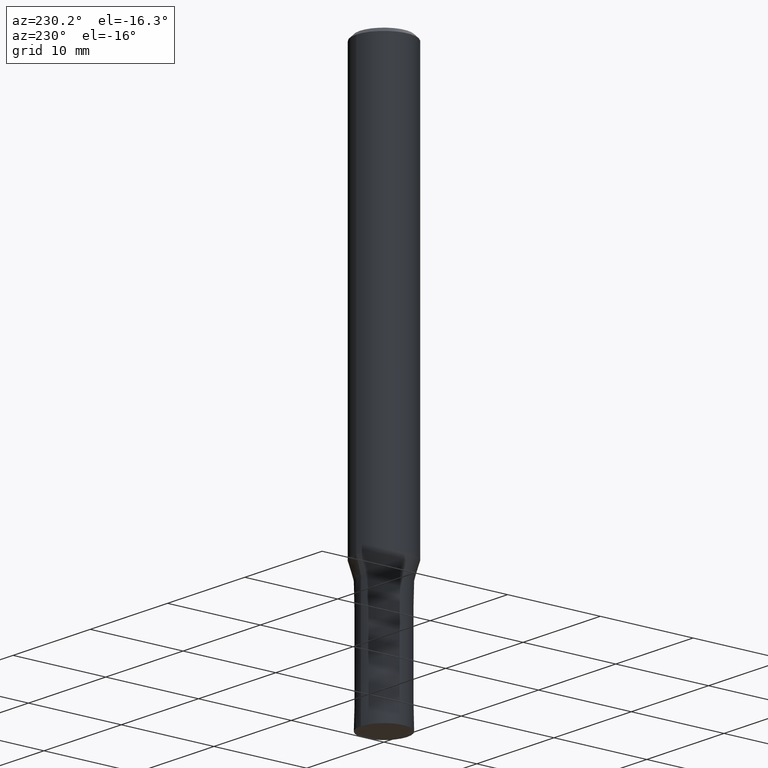
[diagram: clean part render]
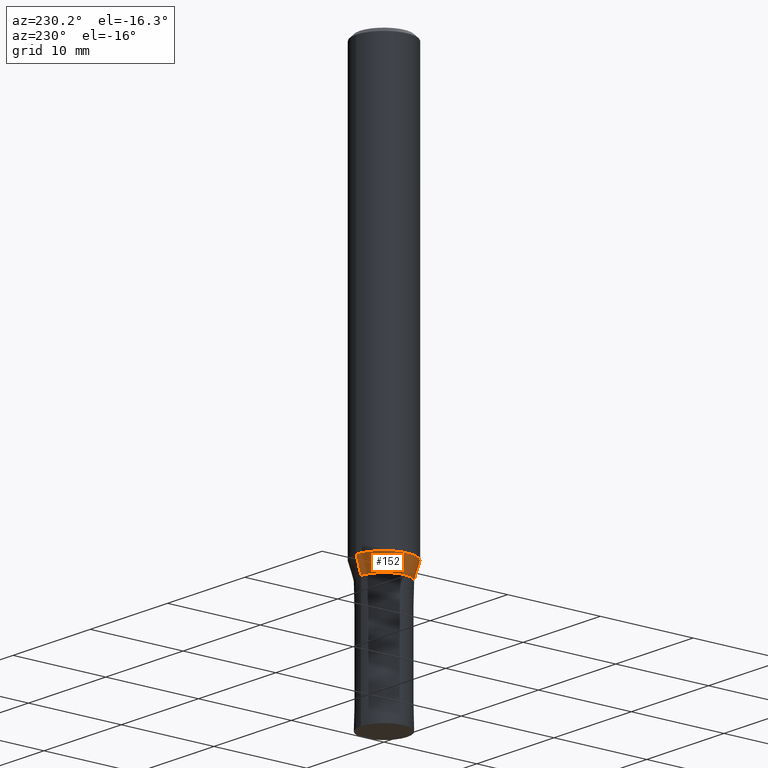
[diagram: same view with one face highlighted and labeled with its STEP entity id]
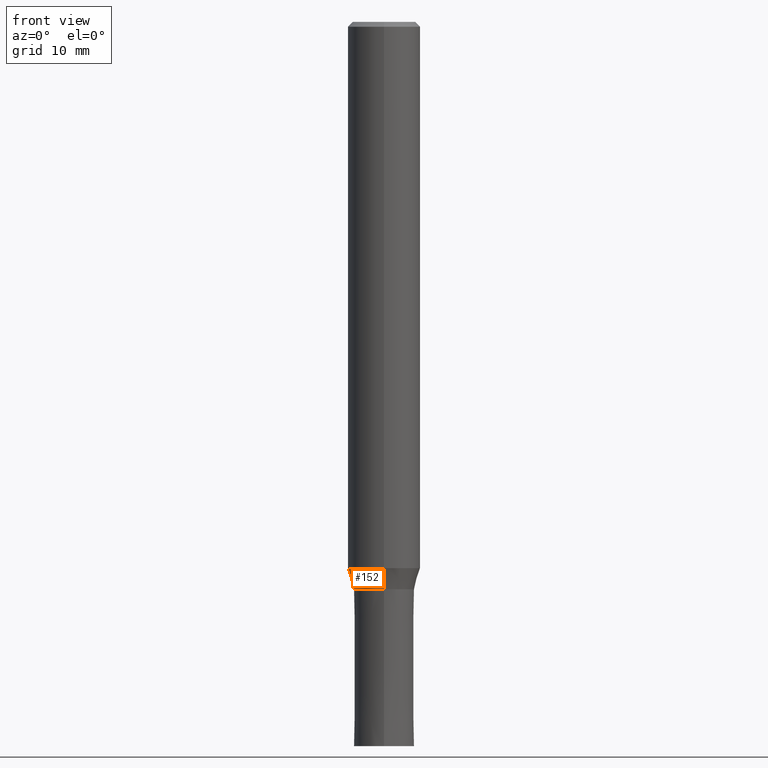
[diagram: same view with one face highlighted and labeled with its STEP entity id]
A machine part, auxiliary view. The second image highlights one B-rep face of the part: STEP entity #152.
A second angle (front view) of the same face is appended — the face is thin or edge-on in the first view.
In plain terms, the highlighted conical surface has half-angle 15.997 deg.
Its self-contained STEP definition (entity closure, byte-faithful):
#88=VERTEX_POINT('',#209);
#92=EDGE_CURVE('',#88,#128,#213,.T.);
#98=VERTEX_POINT('',#220);
#104=EDGE_CURVE('',#88,#136,#226,.T.);
#122=EDGE_CURVE('',#136,#98,#246,.T.);
#128=VERTEX_POINT('',#252);
#136=VERTEX_POINT('',#262);
#152=ADVANCED_FACE('',(#282),#283,.T.);
#164=EDGE_CURVE('',#98,#128,#295,.T.);
#209=CARTESIAN_POINT('',(3.06145465423825E-016,-2.49995,-47.0));
#213=CIRCLE('',#344,2.49995);
#220=CARTESIAN_POINT('',(0.0,2.99995,-45.256));
#226=LINE('',#359,#360);
#246=CIRCLE('',#387,2.99995);
#252=CARTESIAN_POINT('',(0.0,2.49995,-47.0));
#262=CARTESIAN_POINT('',(3.67375783114944E-016,-2.99995,-45.256));
#282=FACE_OUTER_BOUND('',#426,.T.);
#283=CONICAL_SURFACE('',#427,2.74995,0.279208199033747);
#295=LINE('',#445,#446);
#344=AXIS2_PLACEMENT_3D('',#485,#486,#487);
#359=CARTESIAN_POINT('',(3.36760624269385E-016,-2.74995,-46.128));
#360=VECTOR('',#499,1.0);
#387=AXIS2_PLACEMENT_3D('',#522,#523,#524);
#426=EDGE_LOOP('',(#582,#583,#584,#585));
#427=AXIS2_PLACEMENT_3D('',#586,#587,#588);
#445=CARTESIAN_POINT('',(-3.36760624269385E-016,2.74995,-46.128));
#446=VECTOR('',#594,1.0);
#485=CARTESIAN_POINT('',(0.0,0.0,-47.0));
#486=DIRECTION('',(0.0,0.0,-1.0));
#487=DIRECTION('',(0.0,1.0,0.0));
#499=DIRECTION('',(3.37494895041124E-017,-0.275594597388538,0.961273955691222));
#522=CARTESIAN_POINT('',(0.0,0.0,-45.256));
#523=DIRECTION('',(0.0,0.0,-1.0));
#524=DIRECTION('',(0.0,1.0,0.0));
#582=ORIENTED_EDGE('',*,*,#164,.T.);
#583=ORIENTED_EDGE('',*,*,#92,.F.);
#584=ORIENTED_EDGE('',*,*,#104,.T.);
#585=ORIENTED_EDGE('',*,*,#122,.T.);
#586=CARTESIAN_POINT('',(0.0,0.0,-46.128));
#587=DIRECTION('',(-0.0,-0.0,1.0));
#588=DIRECTION('',(0.0,1.0,0.0));
#594=DIRECTION('',(3.37494895041124E-017,-0.275594597388538,-0.961273955691222));